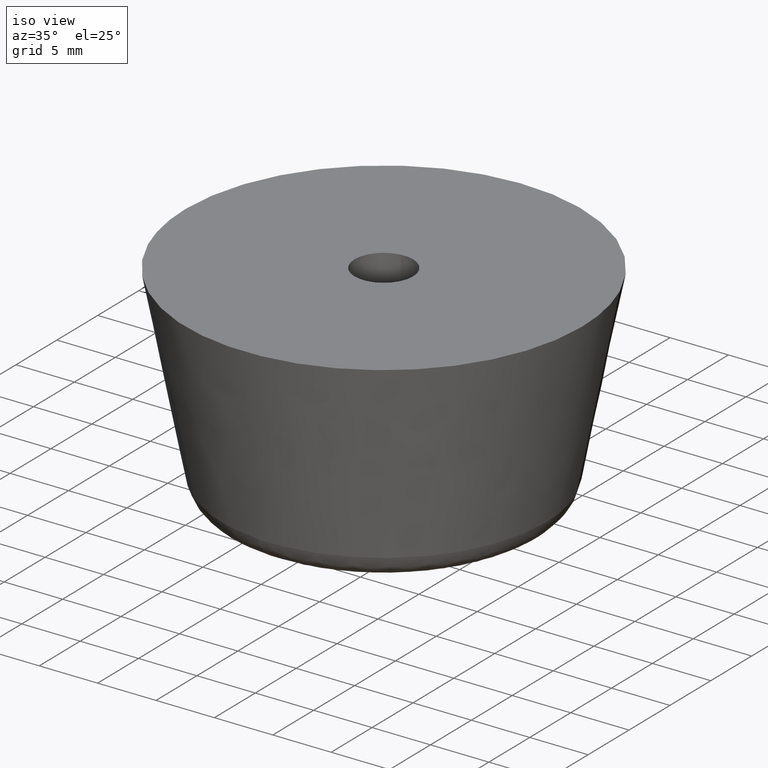
[diagram: clean part render]
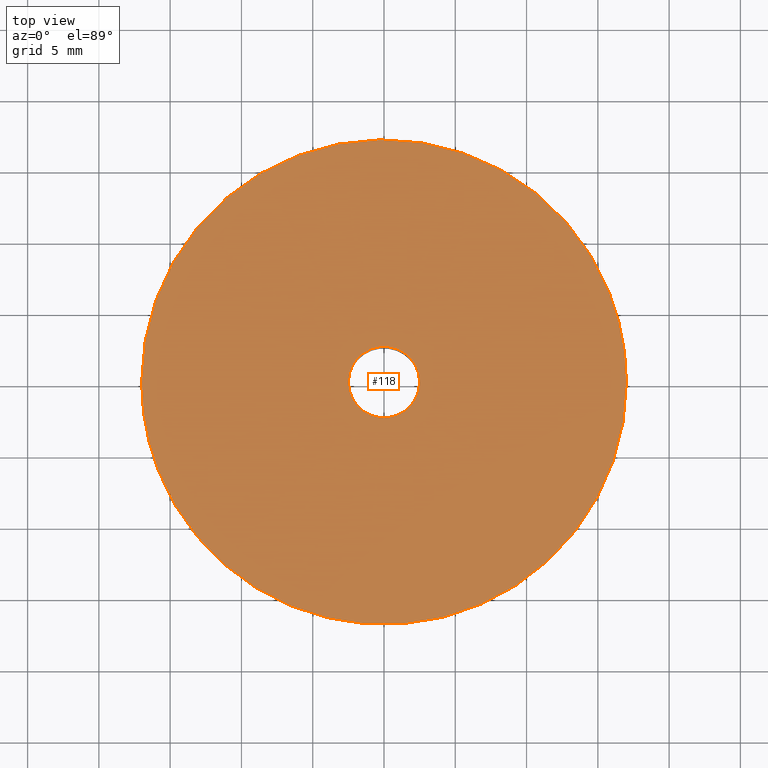
[diagram: tour spotlight — one face highlighted and labeled with its STEP entity id]
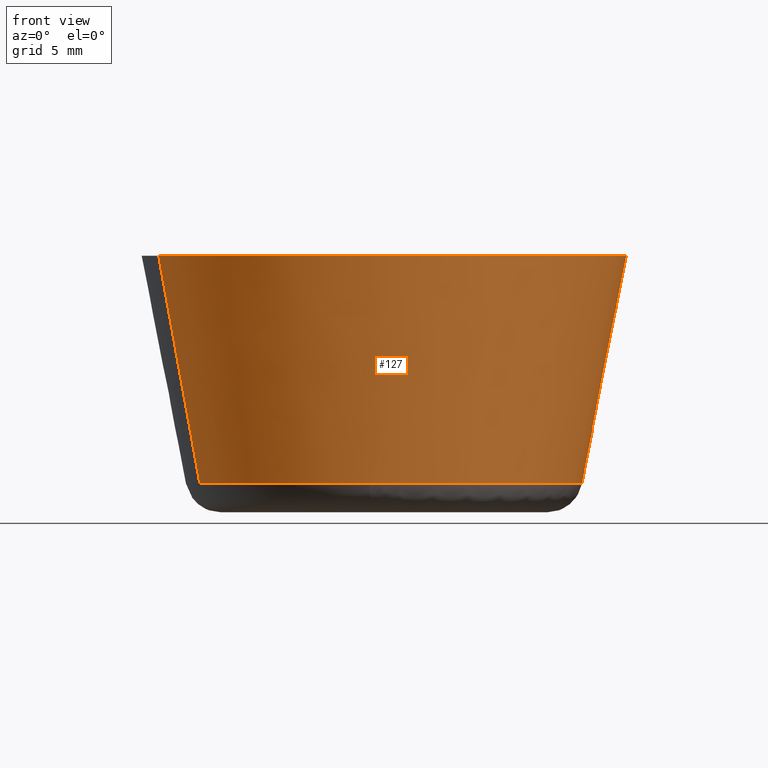
[diagram: tour spotlight — one face highlighted and labeled with its STEP entity id]
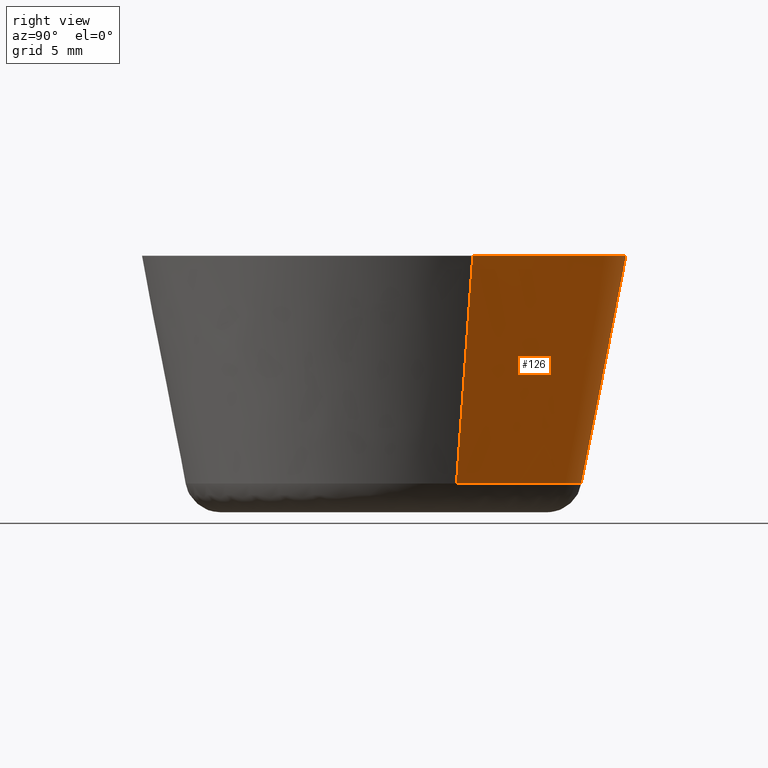
[diagram: tour spotlight — one face highlighted and labeled with its STEP entity id]
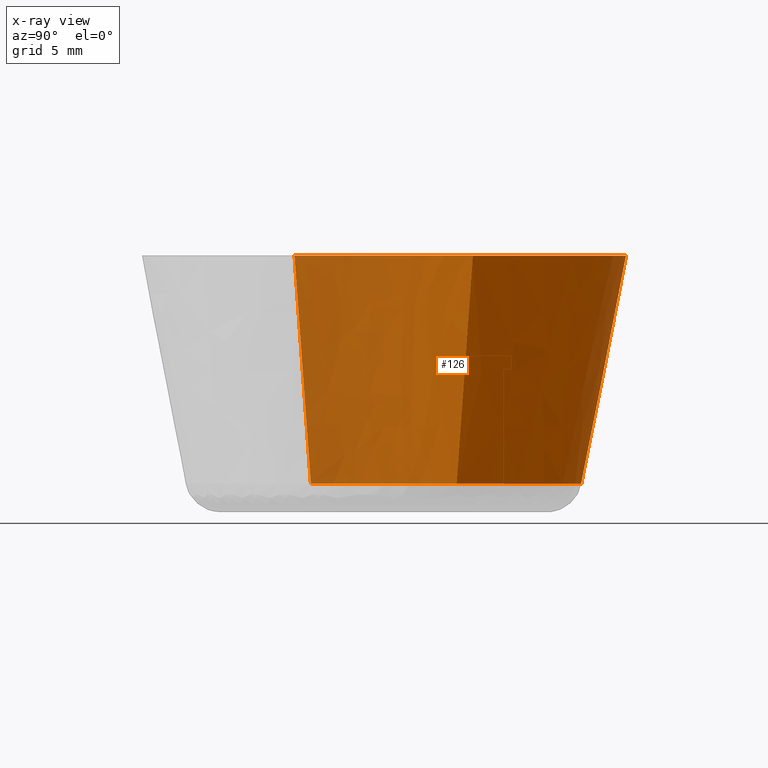
[diagram: x-ray of the same camera — body ghosted, this tour face saturated]
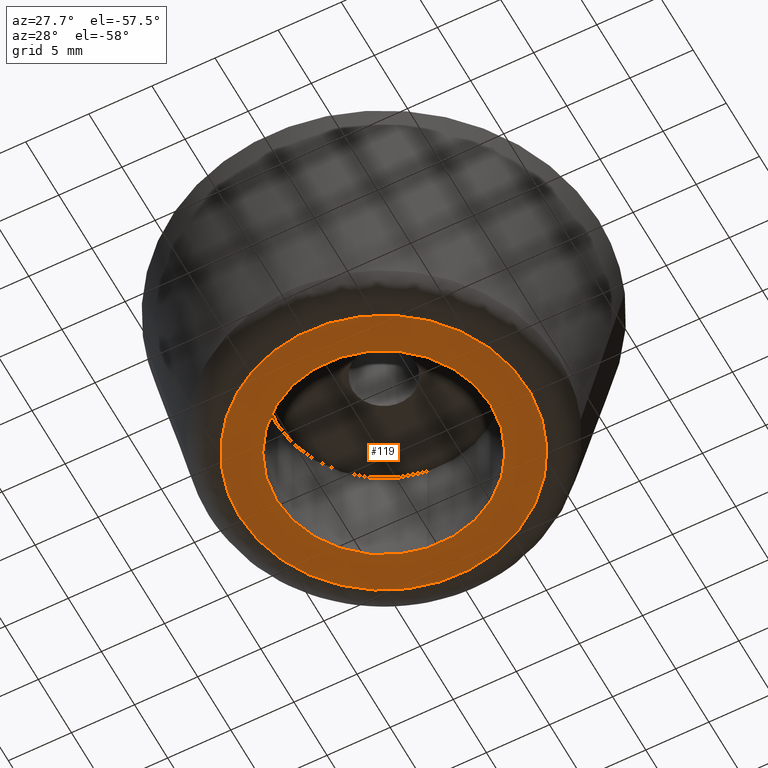
[diagram: tour spotlight — one face highlighted and labeled with its STEP entity id]
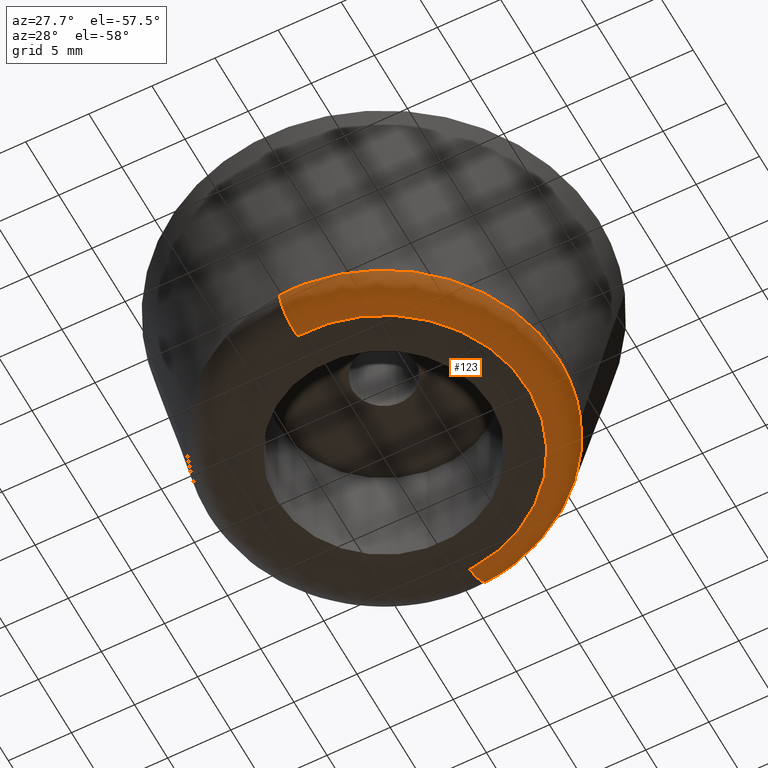
[diagram: tour spotlight — one face highlighted and labeled with its STEP entity id]
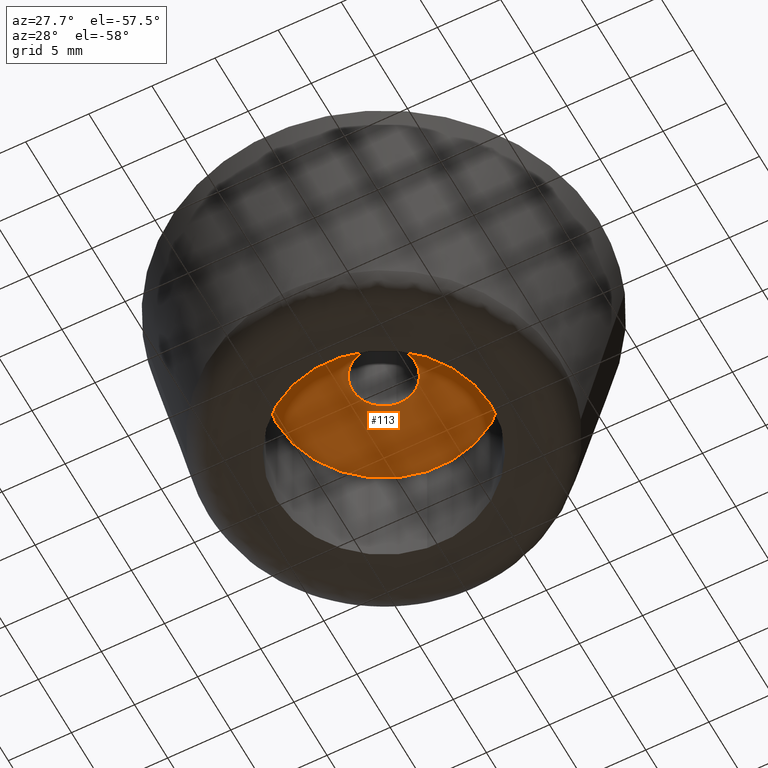
[diagram: tour spotlight — one face highlighted and labeled with its STEP entity id]
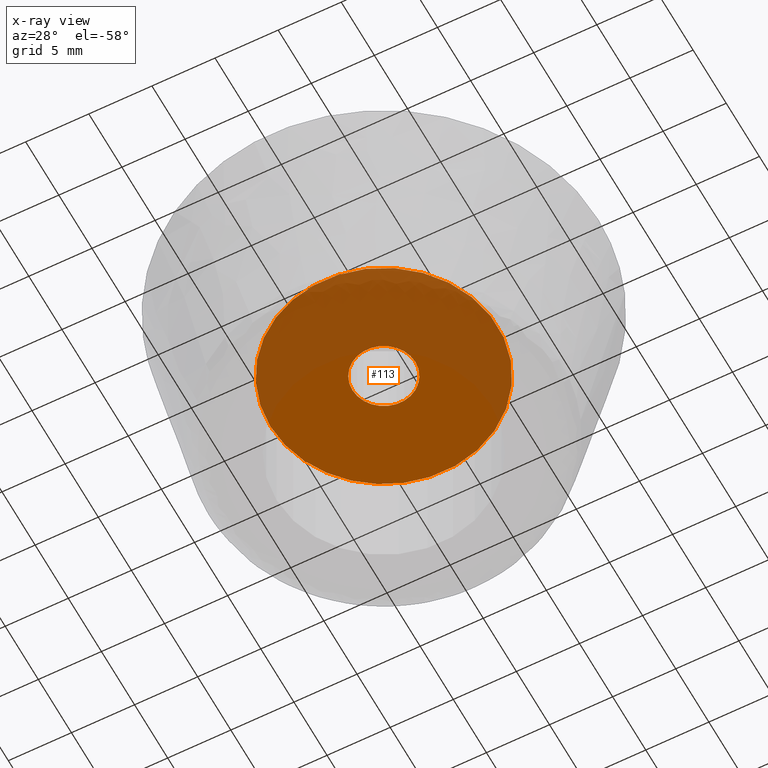
[diagram: x-ray of the same camera — body ghosted, this tour face saturated]
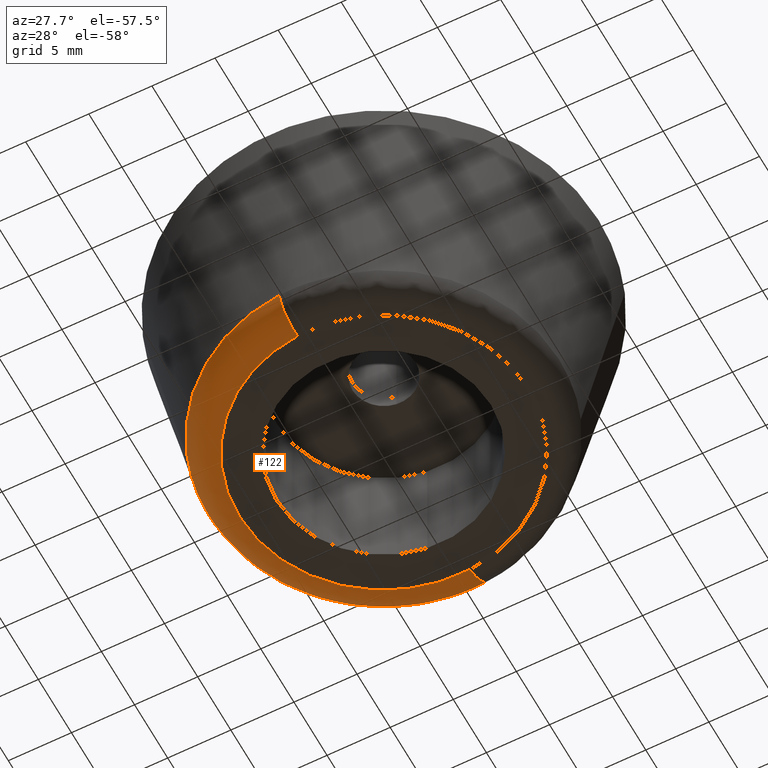
[diagram: tour spotlight — one face highlighted and labeled with its STEP entity id]
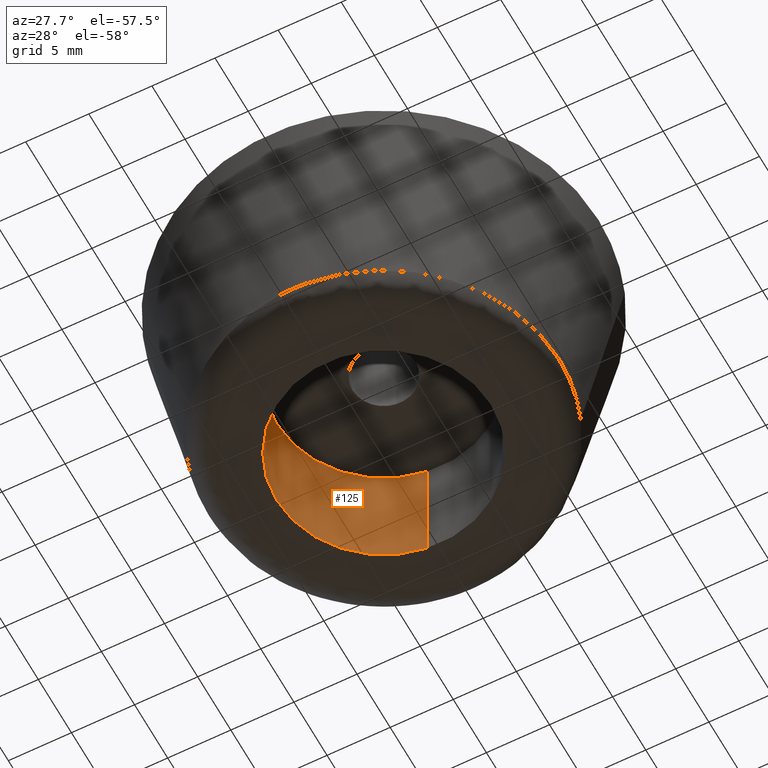
[diagram: tour spotlight — one face highlighted and labeled with its STEP entity id]
A machine part: a face-by-face anatomy tour. The part has 20 B-rep faces; the first image is the clean iso view, then the 8 largest visible faces are spotlighted one at a time (largest first), each with its STEP entity span.

Face 1 — top view, entity #118. In plain terms, the highlighted planar face has unit normal (0, 0, -1).
Definition (entity closure, byte-faithful):
#118=ADVANCED_FACE('',(#195,#196),#194,.F.);
#194=PLANE('',#373);
#195=FACE_OUTER_BOUND('',#374,.T.);
#196=FACE_BOUND('',#375,.T.);
#370=CARTESIAN_POINT('',(2.04000000000E+001,-2.14262968145E+001,1.80000000000E+001));
#371=DIRECTION('',(0.00000000000E+000,0.00000000000E+000,-1.00000000000E+000));
#372=DIRECTION('',(-1.00000000000E+000,0.00000000000E+000,0.00000000000E+000));
#373=AXIS2_PLACEMENT_3D('',#370,#371,#372);
#374=EDGE_LOOP('',(#530,#531,#532,#533,#534));
#375=EDGE_LOOP('',(#535,#536,#537));
#530=ORIENTED_EDGE('',*,*,#634,.F.);
#531=ORIENTED_EDGE('',*,*,#635,.F.);
#532=ORIENTED_EDGE('',*,*,#636,.F.);
#533=ORIENTED_EDGE('',*,*,#637,.F.);
#534=ORIENTED_EDGE('',*,*,#638,.F.);
#535=ORIENTED_EDGE('',*,*,#639,.T.);
#536=ORIENTED_EDGE('',*,*,#640,.T.);
#537=ORIENTED_EDGE('',*,*,#641,.T.);
#634=EDGE_CURVE('',#786,#787,#788,.T.);
#635=EDGE_CURVE('',#794,#786,#795,.T.);
#636=EDGE_CURVE('',#801,#794,#802,.T.);
#637=EDGE_CURVE('',#808,#801,#809,.T.);
#638=EDGE_CURVE('',#787,#808,#815,.T.);
#639=EDGE_CURVE('',#821,#822,#823,.T.);
#640=EDGE_CURVE('',#822,#829,#830,.T.);
#641=EDGE_CURVE('',#829,#821,#836,.T.);
#786=VERTEX_POINT('',#1152);
#787=VERTEX_POINT('',#1153);
#788=CIRCLE('',#1157,1.69999989380E+001);
#794=VERTEX_POINT('',#1158);
#795=CIRCLE('',#1162,1.69999981746E+001);
#801=VERTEX_POINT('',#1163);
#802=CIRCLE('',#1167,1.69999991601E+001);
#808=VERTEX_POINT('',#1168);
#809=CIRCLE('',#1172,1.70000000000E+001);
#815=CIRCLE('',#1176,1.70000000000E+001);
#821=VERTEX_POINT('',#1177);
#822=VERTEX_POINT('',#1178);
#823=CIRCLE('',#1182,2.50000000000E+000);
#829=VERTEX_POINT('',#1183);
#830=CIRCLE('',#1187,2.50000000000E+000);
#836=CIRCLE('',#1191,2.50000000000E+000);
#1152=CARTESIAN_POINT('',(-1.58076963632E+001,-6.25433447857E+000,1.79999945669E+001));
#1153=CARTESIAN_POINT('',(-1.70000000000E+001,0.00000000000E+000,1.80000000000E+001));
#1154=CARTESIAN_POINT('',(-1.06202827155E-006,2.66907732627E-006,1.79999972834E+001));
#1155=DIRECTION('',(-1.59798219147E-007,8.38236464261E-007,-1.00000000000E+000));
#1156=DIRECTION('',(9.29864487571E-001,3.67902208139E-001,1.59798356982E-007));
#1157=AXIS2_PLACEMENT_3D('',#1154,#1155,#1156);
#1158=CARTESIAN_POINT('',(1.33379480584E+000,-1.69475944775E+001,1.79999950323E+001));
#1159=CARTESIAN_POINT('',(-4.71206293540E-007,-8.99228535189E-007,1.79999947996E+001));
#1160=DIRECTION('',(1.95462561115E-008,-1.21934107991E-008,-1.00000000000E+000));
#1161=DIRECTION('',(-7.84585541336E-002,9.96917376357E-001,-1.36893940960E-008));
#1162=AXIS2_PLACEMENT_3D('',#1159,#1160,#1161);
#1163=CARTESIAN_POINT('',(1.70000000000E+001,0.00000000000E+000,1.80000000000E+001));
#1164=CARTESIAN_POINT('',(8.39930908825E-007,1.92506764307E-007,1.79999975162E+001));
#1165=DIRECTION('',(1.46108822527E-007,1.58059541506E-007,-1.00000000000E+000));
#1166=DIRECTION('',(-1.00000000000E+000,1.13239278717E-008,-1.46108820737E-007));
#1167=AXIS2_PLACEMENT_3D('',#1164,#1165,#1166);
#1168=CARTESIAN_POINT('',(1.58076945217E+001,6.25434200453E+000,1.80000000000E+001));
#1169=CARTESIAN_POINT('',(0.00000000000E+000,0.00000000000E+000,1.80000000000E+001));
#1170=DIRECTION('',(0.00000000000E+000,4.43320223628E-016,-1.00000000000E+000));
#1171=DIRECTION('',(1.00000000000E+000,-0.00000000000E+000,-0.00000000000E+000));
#1172=AXIS2_PLACEMENT_3D('',#1169,#1170,#1171);
#1173=CARTESIAN_POINT('',(0.00000000000E+000,0.00000000000E+000,1.80000000000E+001));
#1174=DIRECTION('',(0.00000000000E+000,4.43320223628E-016,-1.00000000000E+000));
#1175=DIRECTION('',(1.00000000000E+000,-0.00000000000E+000,-0.00000000000E+000));
#1176=AXIS2_PLACEMENT_3D('',#1173,#1174,#1175);
#1177=CARTESIAN_POINT('',(-2.50000000000E+000,0.00000000000E+000,1.80000000000E+001));
#1178=CARTESIAN_POINT('',(-2.95514653005E-001,2.48247277726E+000,1.80000000000E+001));
#1179=CARTESIAN_POINT('',(3.10862446895E-015,1.77635683940E-015,1.80000000000E+001));
#1180=DIRECTION('',(3.32039198475E-015,6.11903677810E-015,-1.00000000000E+000));
#1181=DIRECTION('',(-1.00000000000E+000,-3.46944695195E-016,-3.32039198475E-015));
#1182=AXIS2_PLACEMENT_3D('',#1179,#1180,#1181);
#1183=CARTESIAN_POINT('',(2.95084678798E-001,-2.48252392382E+000,1.80000000000E+001));
#1184=CARTESIAN_POINT('',(3.10862446895E-015,1.77635683940E-015,1.80000000000E+001));
#1185=DIRECTION('',(3.32039198475E-015,6.11903677810E-015,-1.00000000000E+000));
#1186=DIRECTION('',(-1.00000000000E+000,-3.46944695195E-016,-3.32039198475E-015));
#1187=AXIS2_PLACEMENT_3D('',#1184,#1185,#1186);
#1188=CARTESIAN_POINT('',(3.10862446895E-015,1.77635683940E-015,1.80000000000E+001));
#1189=DIRECTION('',(3.32039198475E-015,6.11903677810E-015,-1.00000000000E+000));
#1190=DIRECTION('',(-1.00000000000E+000,-3.46944695195E-016,-3.32039198475E-015));
#1191=AXIS2_PLACEMENT_3D('',#1188,#1189,#1190);

Face 2 — front view, entity #127. In plain terms, the highlighted face is a freeform B-spline surface patch.
Definition (entity closure, byte-faithful):
#127=ADVANCED_FACE('',(#289),#288,.T.);
#288=( BOUNDED_SURFACE() B_SPLINE_SURFACE( 2,1,((#467,#468),(#469,#470),(#471,#472),(#473,#474),(#475,#476)), .UNSPECIFIED.,.F.,.F.,.F.) B_SPLINE_SURFACE_WITH_KNOTS((3,2,3),(2,2),(0.00000000000E+000,5.00000000000E-001,1.00000000000E+000),(0.00000000000E+000,1.00000000000E+000), .UNSPECIFIED. ) GEOMETRIC_REPRESENTATION_ITEM() RATIONAL_B_SPLINE_SURFACE(((1.00000000000E+000,1.00000000000E+000),(7.07106781187E-001,7.07106781187E-001),(1.00000000000E+000,1.00000000000E+000),(7.07106781187E-001,7.07106781187E-001),(1.00000000000E+000,1.00000000000E+000))) REPRESENTATION_ITEM('') SURFACE() );
#289=FACE_OUTER_BOUND('',#477,.T.);
#467=CARTESIAN_POINT('',(-1.29189094899E+001,-5.11138768266E+000,2.02282069233E+000));
#468=CARTESIAN_POINT('',(-1.58078560263E+001,-6.25440410777E+000,1.80008898443E+001));
#469=CARTESIAN_POINT('',(-7.80752180728E+000,-1.80302971726E+001,2.02282069233E+000));
#470=CARTESIAN_POINT('',(-9.55345191848E+000,-2.20622601340E+001,1.80008898443E+001));
#471=CARTESIAN_POINT('',(5.11138768266E+000,-1.29189094899E+001,2.02282069233E+000));
#472=CARTESIAN_POINT('',(6.25440410777E+000,-1.58078560263E+001,1.80008898443E+001));
#473=CARTESIAN_POINT('',(1.80302971726E+001,-7.80752180728E+000,2.02282069233E+000));
#474=CARTESIAN_POINT('',(2.20622601340E+001,-9.55345191848E+000,1.80008898443E+001));
#475=CARTESIAN_POINT('',(1.29189094899E+001,5.11138768266E+000,2.02282069233E+000));
#476=CARTESIAN_POINT('',(1.58078560263E+001,6.25440410777E+000,1.80008898443E+001));
#477=EDGE_LOOP('',(#589,#590,#591,#592,#593,#594,#595,#596,#597));
#589=ORIENTED_EDGE('',*,*,#661,.F.);
#590=ORIENTED_EDGE('',*,*,#669,.F.);
#591=ORIENTED_EDGE('',*,*,#668,.F.);
#592=ORIENTED_EDGE('',*,*,#667,.F.);
#593=ORIENTED_EDGE('',*,*,#672,.T.);
#594=ORIENTED_EDGE('',*,*,#637,.T.);
#595=ORIENTED_EDGE('',*,*,#636,.T.);
#596=ORIENTED_EDGE('',*,*,#635,.T.);
#597=ORIENTED_EDGE('',*,*,#673,.F.);
#635=EDGE_CURVE('',#794,#786,#795,.T.);
#636=EDGE_CURVE('',#801,#794,#802,.T.);
#637=EDGE_CURVE('',#808,#801,#809,.T.);
#661=EDGE_CURVE('',#968,#975,#976,.T.);
#667=EDGE_CURVE('',#1009,#1016,#1017,.T.);
#668=EDGE_CURVE('',#1016,#1023,#1024,.T.);
#669=EDGE_CURVE('',#1023,#968,#1030,.T.);
#672=EDGE_CURVE('',#1009,#808,#1048,.T.);
#673=EDGE_CURVE('',#975,#786,#1054,.T.);
#786=VERTEX_POINT('',#1152);
#794=VERTEX_POINT('',#1158);
#795=CIRCLE('',#1162,1.69999981746E+001);
#801=VERTEX_POINT('',#1163);
#802=CIRCLE('',#1167,1.69999991601E+001);
#808=VERTEX_POINT('',#1168);
#809=CIRCLE('',#1172,1.70000000000E+001);
#968=VERTEX_POINT('',#1282);
#975=VERTEX_POINT('',#1286);
#976=CIRCLE('',#1290,1.38933259010E+001);
#1009=VERTEX_POINT('',#1311);
#1016=VERTEX_POINT('',#1316);
#1017=CIRCLE('',#1320,1.38933273125E+001);
#1023=VERTEX_POINT('',#1321);
#1024=CIRCLE('',#1325,1.38933267741E+001);
#1030=CIRCLE('',#1329,1.38933259010E+001);
#1048=(BOUNDED_CURVE() B_SPLINE_CURVE(1,(#1334,#1335),.UNSPECIFIED.,.F.,.F.) B_SPLINE_CURVE_WITH_KNOTS((2,2),(3.30806778497E-007,9.99944308418E-001),.UNSPECIFIED.) CURVE() GEOMETRIC_REPRESENTATION_ITEM() RATIONAL_B_SPLINE_CURVE((1.00000000000E+000,1.00000000000E+000)) REPRESENTATION_ITEM('') );
#1054=(BOUNDED_CURVE() B_SPLINE_CURVE(1,(#1336,#1337),.UNSPECIFIED.,.F.,.F.) B_SPLINE_CURVE_WITH_KNOTS((2,2),(0.00000000000E+000,1.00000000000E+000),.UNSPECIFIED.) CURVE() GEOMETRIC_REPRESENTATION_ITEM() RATIONAL_B_SPLINE_CURVE((7.50000000000E-001,7.50000000000E-001)) REPRESENTATION_ITEM('') );
#1152=CARTESIAN_POINT('',(-1.58076963632E+001,-6.25433447857E+000,1.79999945669E+001));
#1158=CARTESIAN_POINT('',(1.33379480584E+000,-1.69475944775E+001,1.79999950323E+001));
#1159=CARTESIAN_POINT('',(-4.71206293540E-007,-8.99228535189E-007,1.79999947996E+001));
#1160=DIRECTION('',(1.95462561115E-008,-1.21934107991E-008,-1.00000000000E+000));
#1161=DIRECTION('',(-7.84585541336E-002,9.96917376357E-001,-1.36893940960E-008));
#1162=AXIS2_PLACEMENT_3D('',#1159,#1160,#1161);
#1163=CARTESIAN_POINT('',(1.70000000000E+001,0.00000000000E+000,1.80000000000E+001));
#1164=CARTESIAN_POINT('',(8.39930908825E-007,1.92506764307E-007,1.79999975162E+001));
#1165=DIRECTION('',(1.46108822527E-007,1.58059541506E-007,-1.00000000000E+000));
#1166=DIRECTION('',(-1.00000000000E+000,1.13239278717E-008,-1.46108820737E-007));
#1167=AXIS2_PLACEMENT_3D('',#1164,#1165,#1166);
#1168=CARTESIAN_POINT('',(1.58076945217E+001,6.25434200453E+000,1.80000000000E+001));
#1169=CARTESIAN_POINT('',(0.00000000000E+000,0.00000000000E+000,1.80000000000E+001));
#1170=DIRECTION('',(0.00000000000E+000,4.43320223628E-016,-1.00000000000E+000));
#1171=DIRECTION('',(1.00000000000E+000,-0.00000000000E+000,-0.00000000000E+000));
#1172=AXIS2_PLACEMENT_3D('',#1169,#1170,#1171);
#1282=CARTESIAN_POINT('',(-1.01017146346E+000,-1.38565537819E+001,2.02282462871E+000));
#1286=CARTESIAN_POINT('',(-1.29189116751E+001,-5.11138215979E+000,2.02282069233E+000));
#1287=CARTESIAN_POINT('',(2.86107632697E-007,-9.05116301908E-007,2.02282289815E+000));
#1288=DIRECTION('',(2.26695928032E-007,-1.41418122831E-007,-1.00000000000E+000));
#1289=DIRECTION('',(-7.84589450348E-002,9.96917345593E-001,-1.58768502989E-007));
#1290=AXIS2_PLACEMENT_3D('',#1287,#1288,#1289);
#1311=CARTESIAN_POINT('',(1.29189087340E+001,5.11139241056E+000,2.02282599644E+000));
#1316=CARTESIAN_POINT('',(1.38933270000E+001,0.00000000000E+000,2.02282600000E+000));
#1317=CARTESIAN_POINT('',(-3.12496521993E-007,-4.76153232398E-008,2.02282594917E+000));
#1318=DIRECTION('',(3.65857762332E-009,1.34148134800E-016,-1.00000000000E+000));
#1319=DIRECTION('',(-7.27090224111E-002,-9.97353196245E-001,-2.66011736199E-010));
#1320=AXIS2_PLACEMENT_3D('',#1317,#1318,#1319);
#1321=CARTESIAN_POINT('',(1.09005597932E+000,-1.38504984838E+001,2.02282510397E+000));
#1322=CARTESIAN_POINT('',(2.25943829868E-007,-3.40934551701E-008,2.02282502768E+000));
#1323=DIRECTION('',(6.99844360545E-008,2.53087337270E-023,-1.00000000000E+000));
#1324=DIRECTION('',(-1.00000000000E+000,-2.45394466888E-009,-6.99844360545E-008));
#1325=AXIS2_PLACEMENT_3D('',#1322,#1323,#1324);
#1326=CARTESIAN_POINT('',(2.86107632697E-007,-9.05116301908E-007,2.02282289815E+000));
#1327=DIRECTION('',(2.26695928032E-007,-1.41418122831E-007,-1.00000000000E+000));
#1328=DIRECTION('',(-7.84589450348E-002,9.96917345593E-001,-1.58768502989E-007));
#1329=AXIS2_PLACEMENT_3D('',#1326,#1327,#1328);
#1334=CARTESIAN_POINT('',(1.29189094899E+001,5.11138768266E+000,2.02282069233E+000));
#1335=CARTESIAN_POINT('',(1.58076951362E+001,6.25434045136E+000,1.80000000001E+001));
#1336=CARTESIAN_POINT('',(-1.29189094899E+001,-5.11138768266E+000,2.02282069233E+000));
#1337=CARTESIAN_POINT('',(-1.58078560263E+001,-6.25440410777E+000,1.80008898443E+001));

Face 3 — right view, entity #126. An x-ray twin of the same camera follows (body ghosted, this face saturated) — the face is partly hidden behind the body. In plain terms, the highlighted face is a freeform B-spline surface patch.
Definition (entity closure, byte-faithful):
#126=ADVANCED_FACE('',(#279),#278,.T.);
#278=( BOUNDED_SURFACE() B_SPLINE_SURFACE( 2,1,((#456,#457),(#458,#459),(#460,#461),(#462,#463),(#464,#465)), .UNSPECIFIED.,.F.,.F.,.F.) B_SPLINE_SURFACE_WITH_KNOTS((3,2,3),(2,2),(0.00000000000E+000,5.00000000000E-001,1.00000000000E+000),(0.00000000000E+000,1.00000000000E+000), .UNSPECIFIED. ) GEOMETRIC_REPRESENTATION_ITEM() RATIONAL_B_SPLINE_SURFACE(((1.00000000000E+000,1.00000000000E+000),(7.07106781187E-001,7.07106781187E-001),(1.00000000000E+000,1.00000000000E+000),(7.07106781187E-001,7.07106781187E-001),(1.00000000000E+000,1.00000000000E+000))) REPRESENTATION_ITEM('') SURFACE() );
#279=FACE_OUTER_BOUND('',#466,.T.);
#456=CARTESIAN_POINT('',(1.29189094899E+001,5.11138768266E+000,2.02282069233E+000));
#457=CARTESIAN_POINT('',(1.58078560263E+001,6.25440410777E+000,1.80008898443E+001));
#458=CARTESIAN_POINT('',(7.80752180728E+000,1.80302971726E+001,2.02282069233E+000));
#459=CARTESIAN_POINT('',(9.55345191848E+000,2.20622601340E+001,1.80008898443E+001));
#460=CARTESIAN_POINT('',(-5.11138768266E+000,1.29189094899E+001,2.02282069233E+000));
#461=CARTESIAN_POINT('',(-6.25440410777E+000,1.58078560263E+001,1.80008898443E+001));
#462=CARTESIAN_POINT('',(-1.80302971726E+001,7.80752180728E+000,2.02282069233E+000));
#463=CARTESIAN_POINT('',(-2.20622601340E+001,9.55345191848E+000,1.80008898443E+001));
#464=CARTESIAN_POINT('',(-1.29189094899E+001,-5.11138768266E+000,2.02282069233E+000));
#465=CARTESIAN_POINT('',(-1.58078560263E+001,-6.25440410777E+000,1.80008898443E+001));
#466=EDGE_LOOP('',(#581,#582,#583,#584,#585,#586,#587,#588));
#581=ORIENTED_EDGE('',*,*,#634,.T.);
#582=ORIENTED_EDGE('',*,*,#638,.T.);
#583=ORIENTED_EDGE('',*,*,#672,.F.);
#584=ORIENTED_EDGE('',*,*,#666,.F.);
#585=ORIENTED_EDGE('',*,*,#664,.F.);
#586=ORIENTED_EDGE('',*,*,#663,.F.);
#587=ORIENTED_EDGE('',*,*,#662,.F.);
#588=ORIENTED_EDGE('',*,*,#673,.T.);
#634=EDGE_CURVE('',#786,#787,#788,.T.);
#638=EDGE_CURVE('',#787,#808,#815,.T.);
#662=EDGE_CURVE('',#975,#982,#983,.T.);
#663=EDGE_CURVE('',#982,#989,#990,.T.);
#664=EDGE_CURVE('',#989,#996,#997,.T.);
#666=EDGE_CURVE('',#996,#1009,#1010,.T.);
#672=EDGE_CURVE('',#1009,#808,#1048,.T.);
#673=EDGE_CURVE('',#975,#786,#1054,.T.);
#786=VERTEX_POINT('',#1152);
#787=VERTEX_POINT('',#1153);
#788=CIRCLE('',#1157,1.69999989380E+001);
#808=VERTEX_POINT('',#1168);
#815=CIRCLE('',#1176,1.70000000000E+001);
#975=VERTEX_POINT('',#1286);
#982=VERTEX_POINT('',#1291);
#983=CIRCLE('',#1295,1.38933259625E+001);
#989=VERTEX_POINT('',#1296);
#990=CIRCLE('',#1300,1.38933407391E+001);
#996=VERTEX_POINT('',#1301);
#997=CIRCLE('',#1305,1.38933278305E+001);
#1009=VERTEX_POINT('',#1311);
#1010=CIRCLE('',#1315,1.38933273125E+001);
#1048=(BOUNDED_CURVE() B_SPLINE_CURVE(1,(#1334,#1335),.UNSPECIFIED.,.F.,.F.) B_SPLINE_CURVE_WITH_KNOTS((2,2),(3.30806778497E-007,9.99944308418E-001),.UNSPECIFIED.) CURVE() GEOMETRIC_REPRESENTATION_ITEM() RATIONAL_B_SPLINE_CURVE((1.00000000000E+000,1.00000000000E+000)) REPRESENTATION_ITEM('') );
#1054=(BOUNDED_CURVE() B_SPLINE_CURVE(1,(#1336,#1337),.UNSPECIFIED.,.F.,.F.) B_SPLINE_CURVE_WITH_KNOTS((2,2),(0.00000000000E+000,1.00000000000E+000),.UNSPECIFIED.) CURVE() GEOMETRIC_REPRESENTATION_ITEM() RATIONAL_B_SPLINE_CURVE((7.50000000000E-001,7.50000000000E-001)) REPRESENTATION_ITEM('') );
#1152=CARTESIAN_POINT('',(-1.58076963632E+001,-6.25433447857E+000,1.79999945669E+001));
#1153=CARTESIAN_POINT('',(-1.70000000000E+001,0.00000000000E+000,1.80000000000E+001));
#1154=CARTESIAN_POINT('',(-1.06202827155E-006,2.66907732627E-006,1.79999972834E+001));
#1155=DIRECTION('',(-1.59798219147E-007,8.38236464261E-007,-1.00000000000E+000));
#1156=DIRECTION('',(9.29864487571E-001,3.67902208139E-001,1.59798356982E-007));
#1157=AXIS2_PLACEMENT_3D('',#1154,#1155,#1156);
#1168=CARTESIAN_POINT('',(1.58076945217E+001,6.25434200453E+000,1.80000000000E+001));
#1173=CARTESIAN_POINT('',(0.00000000000E+000,0.00000000000E+000,1.80000000000E+001));
#1174=DIRECTION('',(0.00000000000E+000,4.43320223628E-016,-1.00000000000E+000));
#1175=DIRECTION('',(1.00000000000E+000,-0.00000000000E+000,-0.00000000000E+000));
#1176=AXIS2_PLACEMENT_3D('',#1173,#1174,#1175);
#1286=CARTESIAN_POINT('',(-1.29189116751E+001,-5.11138215979E+000,2.02282069233E+000));
#1291=CARTESIAN_POINT('',(-1.38933270000E+001,0.00000000000E+000,2.02282600000E+000));
#1292=CARTESIAN_POINT('',(-1.03750130087E-006,2.60744352643E-006,2.02282334617E+000));
#1293=DIRECTION('',(-1.91015272668E-007,1.00198863825E-006,-9.99999999999E-001));
#1294=DIRECTION('',(9.29864502743E-001,3.67902169792E-001,1.91015472582E-007));
#1295=AXIS2_PLACEMENT_3D('',#1292,#1293,#1294);
#1296=CARTESIAN_POINT('',(-1.36472382203E+001,2.60334992263E+000,2.02282595287E+000));
#1297=CARTESIAN_POINT('',(1.37391117701E-005,-5.70933811339E-009,2.02282333940E+000));
#1298=DIRECTION('',(-1.91501654983E-007,3.39034925090E-017,-1.00000000000E+000));
#1299=DIRECTION('',(1.00000000000E+000,-4.10940624044E-010,-1.91501654983E-007));
#1300=AXIS2_PLACEMENT_3D('',#1297,#1298,#1299);
#1301=CARTESIAN_POINT('',(1.01016993443E+000,1.38565543540E+001,2.02282595287E+000));
#1302=CARTESIAN_POINT('',(4.79665229314E-007,-6.24770445157E-007,2.02282584734E+000));
#1303=DIRECTION('',(-6.69301139328E-009,5.45094152726E-009,-1.00000000000E+000));
#1304=DIRECTION('',(9.82287243664E-001,-1.87381351621E-001,-7.59586450431E-009));
#1305=AXIS2_PLACEMENT_3D('',#1302,#1303,#1304);
#1311=CARTESIAN_POINT('',(1.29189087340E+001,5.11139241056E+000,2.02282599644E+000));
#1312=CARTESIAN_POINT('',(-3.12496521993E-007,-4.76153232398E-008,2.02282594917E+000));
#1313=DIRECTION('',(3.65857762332E-009,1.34148134800E-016,-1.00000000000E+000));
#1314=DIRECTION('',(-7.27090224111E-002,-9.97353196245E-001,-2.66011736199E-010));
#1315=AXIS2_PLACEMENT_3D('',#1312,#1313,#1314);
#1334=CARTESIAN_POINT('',(1.29189094899E+001,5.11138768266E+000,2.02282069233E+000));
#1335=CARTESIAN_POINT('',(1.58076951362E+001,6.25434045136E+000,1.80000000001E+001));
#1336=CARTESIAN_POINT('',(-1.29189094899E+001,-5.11138768266E+000,2.02282069233E+000));
#1337=CARTESIAN_POINT('',(-1.58078560263E+001,-6.25440410777E+000,1.80008898443E+001));

Face 4 — auxiliary view, entity #119. In plain terms, the highlighted planar face has unit normal (0, 0, 1).
Definition (entity closure, byte-faithful):
#119=ADVANCED_FACE('',(#206,#207),#205,.F.);
#205=PLANE('',#379);
#206=FACE_OUTER_BOUND('',#380,.T.);
#207=FACE_BOUND('',#381,.T.);
#376=CARTESIAN_POINT('',(-1.48710757018E+001,-2.37761157020E+001,0.00000000000E+000));
#377=DIRECTION('',(0.00000000000E+000,0.00000000000E+000,1.00000000000E+000));
#378=DIRECTION('',(1.00000000000E+000,0.00000000000E+000,0.00000000000E+000));
#379=AXIS2_PLACEMENT_3D('',#376,#377,#378);
#380=EDGE_LOOP('',(#538,#539,#540));
#381=EDGE_LOOP('',(#541,#542,#543));
#538=ORIENTED_EDGE('',*,*,#642,.T.);
#539=ORIENTED_EDGE('',*,*,#643,.T.);
#540=ORIENTED_EDGE('',*,*,#644,.T.);
#541=ORIENTED_EDGE('',*,*,#645,.F.);
#542=ORIENTED_EDGE('',*,*,#646,.F.);
#543=ORIENTED_EDGE('',*,*,#647,.F.);
#642=EDGE_CURVE('',#842,#843,#844,.T.);
#643=EDGE_CURVE('',#843,#850,#851,.T.);
#644=EDGE_CURVE('',#850,#842,#857,.T.);
#645=EDGE_CURVE('',#863,#864,#865,.T.);
#646=EDGE_CURVE('',#871,#863,#872,.T.);
#647=EDGE_CURVE('',#864,#871,#878,.T.);
#842=VERTEX_POINT('',#1192);
#843=VERTEX_POINT('',#1193);
#844=CIRCLE('',#1197,1.14392890007E+001);
#850=VERTEX_POINT('',#1198);
#851=CIRCLE('',#1202,1.14392890007E+001);
#857=CIRCLE('',#1206,1.14392890007E+001);
#863=VERTEX_POINT('',#1207);
#864=VERTEX_POINT('',#1208);
#865=CIRCLE('',#1212,8.50000000000E+000);
#871=VERTEX_POINT('',#1213);
#872=CIRCLE('',#1217,8.50000000000E+000);
#878=CIRCLE('',#1221,8.50000000000E+000);
#1192=CARTESIAN_POINT('',(-1.14392890014E+001,-1.44328993201E-015,7.00978441769E-016));
#1193=CARTESIAN_POINT('',(8.32331233074E-001,1.14089682950E+001,3.24987362716E-016));
#1194=CARTESIAN_POINT('',(-6.88919143954E-010,-1.36064493006E-010,3.50489220884E-016));
#1195=DIRECTION('',(-3.06390738850E-017,-3.01829552308E-032,-1.00000000000E+000));
#1196=DIRECTION('',(-1.00000000000E+000,1.18947351968E-011,3.06390738850E-017));
#1197=AXIS2_PLACEMENT_3D('',#1194,#1195,#1196);
#1198=CARTESIAN_POINT('',(-8.31740553682E-001,-1.14090113725E+001,3.75972981141E-016));
#1199=CARTESIAN_POINT('',(-6.88919143954E-010,-1.36064493006E-010,3.50489220884E-016));
#1200=DIRECTION('',(-3.06390738850E-017,-3.01829552308E-032,-1.00000000000E+000));
#1201=DIRECTION('',(-1.00000000000E+000,1.18947351968E-011,3.06390738850E-017));
#1202=AXIS2_PLACEMENT_3D('',#1199,#1200,#1201);
#1203=CARTESIAN_POINT('',(-6.88919143954E-010,-1.36064493006E-010,3.50489220884E-016));
#1204=DIRECTION('',(-3.06390738850E-017,-3.01829552308E-032,-1.00000000000E+000));
#1205=DIRECTION('',(-1.00000000000E+000,1.18947351968E-011,3.06390738850E-017));
#1206=AXIS2_PLACEMENT_3D('',#1203,#1204,#1205);
#1207=CARTESIAN_POINT('',(1.00328790791E+000,-8.44058134099E+000,2.16034430758E-014));
#1208=CARTESIAN_POINT('',(-8.50000000000E+000,2.22044604925E-016,1.96717807180E-013));
#1209=CARTESIAN_POINT('',(1.12443387934E-012,5.14255305006E-013,1.62037363692E-014));
#1210=DIRECTION('',(-2.12369495071E-014,-3.16405710330E-015,-1.00000000000E+000));
#1211=DIRECTION('',(-1.00000000000E+000,-6.01185767835E-014,2.12369495071E-014));
#1212=AXIS2_PLACEMENT_3D('',#1209,#1210,#1211);
#1213=CARTESIAN_POINT('',(-1.00474982022E+000,8.44040744270E+000,1.08356264446E-014));
#1214=CARTESIAN_POINT('',(1.12443387934E-012,5.14255305006E-013,1.62037363692E-014));
#1215=DIRECTION('',(-2.12369495071E-014,-3.16405710330E-015,-1.00000000000E+000));
#1216=DIRECTION('',(-1.00000000000E+000,-6.01185767835E-014,2.12369495071E-014));
#1217=AXIS2_PLACEMENT_3D('',#1214,#1215,#1216);
#1218=CARTESIAN_POINT('',(1.12443387934E-012,5.14255305006E-013,1.62037363692E-014));
#1219=DIRECTION('',(-2.12369495071E-014,-3.16405710330E-015,-1.00000000000E+000));
#1220=DIRECTION('',(-1.00000000000E+000,-6.01185767835E-014,2.12369495071E-014));
#1221=AXIS2_PLACEMENT_3D('',#1218,#1219,#1220);

Face 5 — auxiliary view, entity #123. In plain terms, the highlighted face is a freeform B-spline surface patch.
Definition (entity closure, byte-faithful):
#123=ADVANCED_FACE('',(#249),#248,.T.);
#248=( BOUNDED_SURFACE() B_SPLINE_SURFACE( 2,2,((#420,#421,#422,#423,#424),(#425,#426,#427,#428,#429),(#430,#431,#432,#433,#434),(#435,#436,#437,#438,#439),(#440,#441,#442,#443,#444)), .UNSPECIFIED.,.F.,.F.,.F.) B_SPLINE_SURFACE_WITH_KNOTS((3,2,3),(3,2,3),(0.00000000000E+000,5.00000000000E-001,1.00000000000E+000),(0.00000000000E+000,5.00000000000E-001,1.00000000000E+000), .UNSPECIFIED. ) GEOMETRIC_REPRESENTATION_ITEM() RATIONAL_B_SPLINE_SURFACE(((1.00000000000E+000,7.71644218536E-001,1.00000000000E+000,7.71644218536E-001,1.00000000000E+000),(7.07106781187E-001,5.45634859590E-001,7.07106781187E-001,5.45634859590E-001,7.07106781187E-001),(1.00000000000E+000,7.71644218536E-001,1.00000000000E+000,7.71644218536E-001,1.00000000000E+000),(7.07106781187E-001,5.45634859590E-001,7.07106781187E-001,5.45634859590E-001,7.07106781187E-001),(1.00000000000E+000,7.71644218536E-001,1.00000000000E+000,7.71644218536E-001,1.00000000000E+000))) REPRESENTATION_ITEM('') SURFACE() );
#249=FACE_OUTER_BOUND('',#445,.T.);
#420=CARTESIAN_POINT('',(1.01017151581E+000,1.38565545000E+001,2.02282600000E+000));
#421=CARTESIAN_POINT('',(9.81573047610E-001,1.34642684110E+001,-2.87755159167E-016));
#422=CARTESIAN_POINT('',(8.31740553618E-001,1.14090113716E+001,0.00000000000E+000));
#423=CARTESIAN_POINT('',(6.81908059627E-001,9.35375433218E+000,2.87755159167E-016));
#424=CARTESIAN_POINT('',(6.53309591431E-001,8.96146824317E+000,2.02282600000E+000));
#425=CARTESIAN_POINT('',(1.48667260158E+001,1.28463829842E+001,2.02282600000E+000));
#426=CARTESIAN_POINT('',(1.44458414586E+001,1.24826953634E+001,3.66252523863E-015));
#427=CARTESIAN_POINT('',(1.22407519252E+001,1.05772708180E+001,3.58427412722E-015));
#428=CARTESIAN_POINT('',(1.00356623918E+001,8.67184627255E+000,3.13638590032E-015));
#429=CARTESIAN_POINT('',(9.61477783460E+000,8.30815865174E+000,2.02282600000E+000));
#430=CARTESIAN_POINT('',(1.38565545000E+001,-1.01017151581E+000,2.02282600000E+000));
#431=CARTESIAN_POINT('',(1.34642684110E+001,-9.81573047610E-001,4.02857222834E-015));
#432=CARTESIAN_POINT('',(1.14090113716E+001,-8.31740553618E-001,3.55271367880E-015));
#433=CARTESIAN_POINT('',(9.35375433218E+000,-6.81908059627E-001,3.16530675084E-015));
#434=CARTESIAN_POINT('',(8.96146824317E+000,-6.53309591431E-001,2.02282600000E+000));
#435=CARTESIAN_POINT('',(1.28463829842E+001,-1.48667260158E+001,2.02282600000E+000));
#436=CARTESIAN_POINT('',(1.24826953634E+001,-1.44458414586E+001,4.18866457694E-015));
#437=CARTESIAN_POINT('',(1.05772708180E+001,-1.22407519252E+001,3.76822190084E-015));
#438=CARTESIAN_POINT('',(8.67184627255E+000,-1.00356623918E+001,3.42414105949E-015));
#439=CARTESIAN_POINT('',(8.30815865174E+000,-9.61477783460E+000,2.02282600000E+000));
#440=CARTESIAN_POINT('',(-1.01017151581E+000,-1.38565545000E+001,2.02282600000E+000));
#441=CARTESIAN_POINT('',(-9.81573047610E-001,-1.34642684110E+001,2.87755159167E-016));
#442=CARTESIAN_POINT('',(-8.31740553618E-001,-1.14090113716E+001,4.44089209850E-016));
#443=CARTESIAN_POINT('',(-6.81908059627E-001,-9.35375433218E+000,5.75510318334E-016));
#444=CARTESIAN_POINT('',(-6.53309591431E-001,-8.96146824317E+000,2.02282600000E+000));
#445=EDGE_LOOP('',(#564,#565,#566,#567,#568,#569,#570));
#564=ORIENTED_EDGE('',*,*,#666,.T.);
#565=ORIENTED_EDGE('',*,*,#667,.T.);
#566=ORIENTED_EDGE('',*,*,#668,.T.);
#567=ORIENTED_EDGE('',*,*,#669,.T.);
#568=ORIENTED_EDGE('',*,*,#660,.T.);
#569=ORIENTED_EDGE('',*,*,#643,.F.);
#570=ORIENTED_EDGE('',*,*,#665,.F.);
#643=EDGE_CURVE('',#843,#850,#851,.T.);
#660=EDGE_CURVE('',#968,#850,#969,.T.);
#665=EDGE_CURVE('',#996,#843,#1003,.T.);
#666=EDGE_CURVE('',#996,#1009,#1010,.T.);
#667=EDGE_CURVE('',#1009,#1016,#1017,.T.);
#668=EDGE_CURVE('',#1016,#1023,#1024,.T.);
#669=EDGE_CURVE('',#1023,#968,#1030,.T.);
#843=VERTEX_POINT('',#1193);
#850=VERTEX_POINT('',#1198);
#851=CIRCLE('',#1202,1.14392890007E+001);
#968=VERTEX_POINT('',#1282);
#969=(BOUNDED_CURVE() B_SPLINE_CURVE(2,(#1283,#1284,#1285),.UNSPECIFIED.,.F.,.F.) B_SPLINE_CURVE_WITH_KNOTS((3,3),(2.33452525367E-007,5.00000000000E-001),.UNSPECIFIED.) CURVE() GEOMETRIC_REPRESENTATION_ITEM() RATIONAL_B_SPLINE_CURVE((1.00000000000E+000,7.71644218536E-001,1.00000000000E+000)) REPRESENTATION_ITEM('') );
#996=VERTEX_POINT('',#1301);
#1003=(BOUNDED_CURVE() B_SPLINE_CURVE(3,(#1306,#1307,#1308,#1309,#1310),.UNSPECIFIED.,.F.,.F.) B_SPLINE_CURVE_WITH_KNOTS((4,1,4),(0.00000000000E+000,2.50000212065E-001,5.00000379612E-001),.UNSPECIFIED.) CURVE() GEOMETRIC_REPRESENTATION_ITEM() RATIONAL_B_SPLINE_CURVE((1.00000000000E+000,1.00000000000E+000,1.00000000000E+000,1.00000000000E+000,1.00000000000E+000)) REPRESENTATION_ITEM('') );
#1009=VERTEX_POINT('',#1311);
#1010=CIRCLE('',#1315,1.38933273125E+001);
#1016=VERTEX_POINT('',#1316);
#1017=CIRCLE('',#1320,1.38933273125E+001);
#1023=VERTEX_POINT('',#1321);
#1024=CIRCLE('',#1325,1.38933267741E+001);
#1030=CIRCLE('',#1329,1.38933259010E+001);
#1193=CARTESIAN_POINT('',(8.32331233074E-001,1.14089682950E+001,3.24987362716E-016));
#1198=CARTESIAN_POINT('',(-8.31740553682E-001,-1.14090113725E+001,3.75972981141E-016));
#1199=CARTESIAN_POINT('',(-6.88919143954E-010,-1.36064493006E-010,3.50489220884E-016));
#1200=DIRECTION('',(-3.06390738850E-017,-3.01829552308E-032,-1.00000000000E+000));
#1201=DIRECTION('',(-1.00000000000E+000,1.18947351968E-011,3.06390738850E-017));
#1202=AXIS2_PLACEMENT_3D('',#1199,#1200,#1201);
#1282=CARTESIAN_POINT('',(-1.01017146346E+000,-1.38565537819E+001,2.02282462871E+000));
#1283=CARTESIAN_POINT('',(-1.01017151581E+000,-1.38565545000E+001,2.02282600000E+000));
#1284=CARTESIAN_POINT('',(-9.81573047610E-001,-1.34642684110E+001,-2.87755159167E-016));
#1285=CARTESIAN_POINT('',(-8.31740553618E-001,-1.14090113716E+001,0.00000000000E+000));
#1301=CARTESIAN_POINT('',(1.01016993443E+000,1.38565543540E+001,2.02282595287E+000));
#1306=CARTESIAN_POINT('',(1.01017151581E+000,1.38565545000E+001,2.02282600000E+000));
#1307=CARTESIAN_POINT('',(1.00248948097E+000,1.37511797862E+001,1.46233336768E+000));
#1308=CARTESIAN_POINT('',(9.56865814179E-001,1.31253585118E+001,4.12245422285E-001));
#1309=CARTESIAN_POINT('',(8.73210333253E-001,1.19778536450E+001,-3.26960407680E-003));
#1310=CARTESIAN_POINT('',(8.31740378060E-001,1.14090089634E+001,1.16570146336E-012));
#1311=CARTESIAN_POINT('',(1.29189087340E+001,5.11139241056E+000,2.02282599644E+000));
#1312=CARTESIAN_POINT('',(-3.12496521993E-007,-4.76153232398E-008,2.02282594917E+000));
#1313=DIRECTION('',(3.65857762332E-009,1.34148134800E-016,-1.00000000000E+000));
#1314=DIRECTION('',(-7.27090224111E-002,-9.97353196245E-001,-2.66011736199E-010));
#1315=AXIS2_PLACEMENT_3D('',#1312,#1313,#1314);
#1316=CARTESIAN_POINT('',(1.38933270000E+001,0.00000000000E+000,2.02282600000E+000));
#1317=CARTESIAN_POINT('',(-3.12496521993E-007,-4.76153232398E-008,2.02282594917E+000));
#1318=DIRECTION('',(3.65857762332E-009,1.34148134800E-016,-1.00000000000E+000));
#1319=DIRECTION('',(-7.27090224111E-002,-9.97353196245E-001,-2.66011736199E-010));
#1320=AXIS2_PLACEMENT_3D('',#1317,#1318,#1319);
#1321=CARTESIAN_POINT('',(1.09005597932E+000,-1.38504984838E+001,2.02282510397E+000));
#1322=CARTESIAN_POINT('',(2.25943829868E-007,-3.40934551701E-008,2.02282502768E+000));
#1323=DIRECTION('',(6.99844360545E-008,2.53087337270E-023,-1.00000000000E+000));
#1324=DIRECTION('',(-1.00000000000E+000,-2.45394466888E-009,-6.99844360545E-008));
#1325=AXIS2_PLACEMENT_3D('',#1322,#1323,#1324);
#1326=CARTESIAN_POINT('',(2.86107632697E-007,-9.05116301908E-007,2.02282289815E+000));
#1327=DIRECTION('',(2.26695928032E-007,-1.41418122831E-007,-1.00000000000E+000));
#1328=DIRECTION('',(-7.84589450348E-002,9.96917345593E-001,-1.58768502989E-007));
#1329=AXIS2_PLACEMENT_3D('',#1326,#1327,#1328);

Face 6 — auxiliary view, entity #113. An x-ray twin of the same camera follows (body ghosted, this face saturated) — the face is partly hidden behind the body. In plain terms, the highlighted planar face has unit normal (0, 0, 1).
Definition (entity closure, byte-faithful):
#113=ADVANCED_FACE('',(#144,#145),#143,.F.);
#143=PLANE('',#347);
#144=FACE_OUTER_BOUND('',#348,.T.);
#145=FACE_BOUND('',#349,.T.);
#344=CARTESIAN_POINT('',(-1.17000000000E+001,-1.87061487217E+001,1.00000000000E+001));
#345=DIRECTION('',(0.00000000000E+000,0.00000000000E+000,1.00000000000E+000));
#346=DIRECTION('',(1.00000000000E+000,0.00000000000E+000,0.00000000000E+000));
#347=AXIS2_PLACEMENT_3D('',#344,#345,#346);
#348=EDGE_LOOP('',(#504,#505,#506));
#349=EDGE_LOOP('',(#507,#508,#509));
#504=ORIENTED_EDGE('',*,*,#624,.T.);
#505=ORIENTED_EDGE('',*,*,#625,.T.);
#506=ORIENTED_EDGE('',*,*,#626,.T.);
#507=ORIENTED_EDGE('',*,*,#627,.F.);
#508=ORIENTED_EDGE('',*,*,#628,.F.);
#509=ORIENTED_EDGE('',*,*,#629,.F.);
#624=EDGE_CURVE('',#720,#721,#722,.T.);
#625=EDGE_CURVE('',#721,#728,#729,.T.);
#626=EDGE_CURVE('',#728,#720,#735,.T.);
#627=EDGE_CURVE('',#741,#742,#743,.T.);
#628=EDGE_CURVE('',#749,#741,#750,.T.);
#629=EDGE_CURVE('',#742,#749,#756,.T.);
#720=VERTEX_POINT('',#1114);
#721=VERTEX_POINT('',#1115);
#722=CIRCLE('',#1119,8.99999999999E+000);
#728=VERTEX_POINT('',#1120);
#729=CIRCLE('',#1124,8.99999999999E+000);
#735=CIRCLE('',#1128,8.99999999999E+000);
#741=VERTEX_POINT('',#1129);
#742=VERTEX_POINT('',#1130);
#743=CIRCLE('',#1134,2.50000000000E+000);
#749=VERTEX_POINT('',#1135);
#750=CIRCLE('',#1139,2.50000000000E+000);
#756=CIRCLE('',#1143,2.50000000000E+000);
#1114=CARTESIAN_POINT('',(-8.99999999998E+000,1.55431223448E-015,9.99999999999E+000));
#1115=CARTESIAN_POINT('',(-1.06385274010E+000,8.93690199942E+000,1.00000000000E+001));
#1116=CARTESIAN_POINT('',(9.99333948926E-012,4.54036808151E-012,1.00000000000E+001));
#1117=DIRECTION('',(6.36308559829E-013,9.47153227089E-014,-1.00000000000E+000));
#1118=DIRECTION('',(-1.00000000000E+000,-5.03971864241E-013,-6.36308559829E-013));
#1119=AXIS2_PLACEMENT_3D('',#1116,#1117,#1118);
#1120=CARTESIAN_POINT('',(1.06230810929E+000,-8.93708573757E+000,1.00000000000E+001));
#1121=CARTESIAN_POINT('',(9.99333948926E-012,4.54036808151E-012,1.00000000000E+001));
#1122=DIRECTION('',(6.36308559829E-013,9.47153227089E-014,-1.00000000000E+000));
#1123=DIRECTION('',(-1.00000000000E+000,-5.03971864241E-013,-6.36308559829E-013));
#1124=AXIS2_PLACEMENT_3D('',#1121,#1122,#1123);
#1125=CARTESIAN_POINT('',(9.99333948926E-012,4.54036808151E-012,1.00000000000E+001));
#1126=DIRECTION('',(6.36308559829E-013,9.47153227089E-014,-1.00000000000E+000));
#1127=DIRECTION('',(-1.00000000000E+000,-5.03971864241E-013,-6.36308559829E-013));
#1128=AXIS2_PLACEMENT_3D('',#1125,#1126,#1127);
#1129=CARTESIAN_POINT('',(2.95085063535E-001,-2.48252387809E+000,1.00000000000E+001));
#1130=CARTESIAN_POINT('',(-2.50000000000E+000,0.00000000000E+000,1.00000000000E+001));
#1131=CARTESIAN_POINT('',(3.10862446895E-015,1.77635683940E-015,1.00000000000E+001));
#1132=DIRECTION('',(-9.14824932623E-015,3.43681359197E-016,-1.00000000000E+000));
#1133=DIRECTION('',(-1.00000000000E+000,-3.46944695195E-016,9.14824932623E-015));
#1134=AXIS2_PLACEMENT_3D('',#1131,#1132,#1133);
#1135=CARTESIAN_POINT('',(-2.95514651617E-001,2.48247277743E+000,1.00000000000E+001));
#1136=CARTESIAN_POINT('',(3.10862446895E-015,1.77635683940E-015,1.00000000000E+001));
#1137=DIRECTION('',(-9.14824932623E-015,3.43681359197E-016,-1.00000000000E+000));
#1138=DIRECTION('',(-1.00000000000E+000,-3.46944695195E-016,9.14824932623E-015));
#1139=AXIS2_PLACEMENT_3D('',#1136,#1137,#1138);
#1140=CARTESIAN_POINT('',(3.10862446895E-015,1.77635683940E-015,1.00000000000E+001));
#1141=DIRECTION('',(-9.14824932623E-015,3.43681359197E-016,-1.00000000000E+000));
#1142=DIRECTION('',(-1.00000000000E+000,-3.46944695195E-016,9.14824932623E-015));
#1143=AXIS2_PLACEMENT_3D('',#1140,#1141,#1142);

Face 7 — auxiliary view, entity #122. In plain terms, the highlighted face is a freeform B-spline surface patch.
Definition (entity closure, byte-faithful):
#122=ADVANCED_FACE('',(#239),#238,.T.);
#238=( BOUNDED_SURFACE() B_SPLINE_SURFACE( 2,2,((#394,#395,#396,#397,#398),(#399,#400,#401,#402,#403),(#404,#405,#406,#407,#408),(#409,#410,#411,#412,#413),(#414,#415,#416,#417,#418)), .UNSPECIFIED.,.F.,.F.,.F.) B_SPLINE_SURFACE_WITH_KNOTS((3,2,3),(3,2,3),(0.00000000000E+000,5.00000000000E-001,1.00000000000E+000),(0.00000000000E+000,5.00000000000E-001,1.00000000000E+000), .UNSPECIFIED. ) GEOMETRIC_REPRESENTATION_ITEM() RATIONAL_B_SPLINE_SURFACE(((1.00000000000E+000,7.71644218536E-001,1.00000000000E+000,7.71644218536E-001,1.00000000000E+000),(7.07106781187E-001,5.45634859590E-001,7.07106781187E-001,5.45634859590E-001,7.07106781187E-001),(1.00000000000E+000,7.71644218536E-001,1.00000000000E+000,7.71644218536E-001,1.00000000000E+000),(7.07106781187E-001,5.45634859590E-001,7.07106781187E-001,5.45634859590E-001,7.07106781187E-001),(1.00000000000E+000,7.71644218536E-001,1.00000000000E+000,7.71644218536E-001,1.00000000000E+000))) REPRESENTATION_ITEM('') SURFACE() );
#239=FACE_OUTER_BOUND('',#419,.T.);
#394=CARTESIAN_POINT('',(-1.01017151581E+000,-1.38565545000E+001,2.02282600000E+000));
#395=CARTESIAN_POINT('',(-9.81573047610E-001,-1.34642684110E+001,-2.87755159167E-016));
#396=CARTESIAN_POINT('',(-8.31740553618E-001,-1.14090113716E+001,0.00000000000E+000));
#397=CARTESIAN_POINT('',(-6.81908059627E-001,-9.35375433218E+000,2.87755159167E-016));
#398=CARTESIAN_POINT('',(-6.53309591431E-001,-8.96146824317E+000,2.02282600000E+000));
#399=CARTESIAN_POINT('',(-1.48667260158E+001,-1.28463829842E+001,2.02282600000E+000));
#400=CARTESIAN_POINT('',(-1.44458414586E+001,-1.24826953634E+001,-4.23803555696E-015));
#401=CARTESIAN_POINT('',(-1.22407519252E+001,-1.05772708180E+001,-3.58427412722E-015));
#402=CARTESIAN_POINT('',(-1.00356623918E+001,-8.67184627255E+000,-2.56087558199E-015));
#403=CARTESIAN_POINT('',(-9.61477783460E+000,-8.30815865174E+000,2.02282600000E+000));
#404=CARTESIAN_POINT('',(-1.38565545000E+001,1.01017151581E+000,2.02282600000E+000));
#405=CARTESIAN_POINT('',(-1.34642684110E+001,9.81573047610E-001,-4.60408254667E-015));
#406=CARTESIAN_POINT('',(-1.14090113716E+001,8.31740553618E-001,-3.55271367880E-015));
#407=CARTESIAN_POINT('',(-9.35375433218E+000,6.81908059627E-001,-2.58979643250E-015));
#408=CARTESIAN_POINT('',(-8.96146824317E+000,6.53309591431E-001,2.02282600000E+000));
#409=CARTESIAN_POINT('',(-1.28463829842E+001,1.48667260158E+001,2.02282600000E+000));
#410=CARTESIAN_POINT('',(-1.24826953634E+001,1.44458414586E+001,-4.76417489527E-015));
#411=CARTESIAN_POINT('',(-1.05772708180E+001,1.22407519252E+001,-3.76822190084E-015));
#412=CARTESIAN_POINT('',(-8.67184627255E+000,1.00356623918E+001,-2.84863074116E-015));
#413=CARTESIAN_POINT('',(-8.30815865174E+000,9.61477783460E+000,2.02282600000E+000));
#414=CARTESIAN_POINT('',(1.01017151581E+000,1.38565545000E+001,2.02282600000E+000));
#415=CARTESIAN_POINT('',(9.81573047610E-001,1.34642684110E+001,-8.63265477501E-016));
#416=CARTESIAN_POINT('',(8.31740553618E-001,1.14090113716E+001,-4.44089209850E-016));
#417=CARTESIAN_POINT('',(6.81908059627E-001,9.35375433218E+000,0.00000000000E+000));
#418=CARTESIAN_POINT('',(6.53309591431E-001,8.96146824317E+000,2.02282600000E+000));
#419=EDGE_LOOP('',(#556,#557,#558,#559,#560,#561,#562,#563));
#556=ORIENTED_EDGE('',*,*,#642,.F.);
#557=ORIENTED_EDGE('',*,*,#644,.F.);
#558=ORIENTED_EDGE('',*,*,#660,.F.);
#559=ORIENTED_EDGE('',*,*,#661,.T.);
#560=ORIENTED_EDGE('',*,*,#662,.T.);
#561=ORIENTED_EDGE('',*,*,#663,.T.);
#562=ORIENTED_EDGE('',*,*,#664,.T.);
#563=ORIENTED_EDGE('',*,*,#665,.T.);
#642=EDGE_CURVE('',#842,#843,#844,.T.);
#644=EDGE_CURVE('',#850,#842,#857,.T.);
#660=EDGE_CURVE('',#968,#850,#969,.T.);
#661=EDGE_CURVE('',#968,#975,#976,.T.);
#662=EDGE_CURVE('',#975,#982,#983,.T.);
#663=EDGE_CURVE('',#982,#989,#990,.T.);
#664=EDGE_CURVE('',#989,#996,#997,.T.);
#665=EDGE_CURVE('',#996,#843,#1003,.T.);
#842=VERTEX_POINT('',#1192);
#843=VERTEX_POINT('',#1193);
#844=CIRCLE('',#1197,1.14392890007E+001);
#850=VERTEX_POINT('',#1198);
#857=CIRCLE('',#1206,1.14392890007E+001);
#968=VERTEX_POINT('',#1282);
#969=(BOUNDED_CURVE() B_SPLINE_CURVE(2,(#1283,#1284,#1285),.UNSPECIFIED.,.F.,.F.) B_SPLINE_CURVE_WITH_KNOTS((3,3),(2.33452525367E-007,5.00000000000E-001),.UNSPECIFIED.) CURVE() GEOMETRIC_REPRESENTATION_ITEM() RATIONAL_B_SPLINE_CURVE((1.00000000000E+000,7.71644218536E-001,1.00000000000E+000)) REPRESENTATION_ITEM('') );
#975=VERTEX_POINT('',#1286);
#976=CIRCLE('',#1290,1.38933259010E+001);
#982=VERTEX_POINT('',#1291);
#983=CIRCLE('',#1295,1.38933259625E+001);
#989=VERTEX_POINT('',#1296);
#990=CIRCLE('',#1300,1.38933407391E+001);
#996=VERTEX_POINT('',#1301);
#997=CIRCLE('',#1305,1.38933278305E+001);
#1003=(BOUNDED_CURVE() B_SPLINE_CURVE(3,(#1306,#1307,#1308,#1309,#1310),.UNSPECIFIED.,.F.,.F.) B_SPLINE_CURVE_WITH_KNOTS((4,1,4),(0.00000000000E+000,2.50000212065E-001,5.00000379612E-001),.UNSPECIFIED.) CURVE() GEOMETRIC_REPRESENTATION_ITEM() RATIONAL_B_SPLINE_CURVE((1.00000000000E+000,1.00000000000E+000,1.00000000000E+000,1.00000000000E+000,1.00000000000E+000)) REPRESENTATION_ITEM('') );
#1192=CARTESIAN_POINT('',(-1.14392890014E+001,-1.44328993201E-015,7.00978441769E-016));
#1193=CARTESIAN_POINT('',(8.32331233074E-001,1.14089682950E+001,3.24987362716E-016));
#1194=CARTESIAN_POINT('',(-6.88919143954E-010,-1.36064493006E-010,3.50489220884E-016));
#1195=DIRECTION('',(-3.06390738850E-017,-3.01829552308E-032,-1.00000000000E+000));
#1196=DIRECTION('',(-1.00000000000E+000,1.18947351968E-011,3.06390738850E-017));
#1197=AXIS2_PLACEMENT_3D('',#1194,#1195,#1196);
#1198=CARTESIAN_POINT('',(-8.31740553682E-001,-1.14090113725E+001,3.75972981141E-016));
#1203=CARTESIAN_POINT('',(-6.88919143954E-010,-1.36064493006E-010,3.50489220884E-016));
#1204=DIRECTION('',(-3.06390738850E-017,-3.01829552308E-032,-1.00000000000E+000));
#1205=DIRECTION('',(-1.00000000000E+000,1.18947351968E-011,3.06390738850E-017));
#1206=AXIS2_PLACEMENT_3D('',#1203,#1204,#1205);
#1282=CARTESIAN_POINT('',(-1.01017146346E+000,-1.38565537819E+001,2.02282462871E+000));
#1283=CARTESIAN_POINT('',(-1.01017151581E+000,-1.38565545000E+001,2.02282600000E+000));
#1284=CARTESIAN_POINT('',(-9.81573047610E-001,-1.34642684110E+001,-2.87755159167E-016));
#1285=CARTESIAN_POINT('',(-8.31740553618E-001,-1.14090113716E+001,0.00000000000E+000));
#1286=CARTESIAN_POINT('',(-1.29189116751E+001,-5.11138215979E+000,2.02282069233E+000));
#1287=CARTESIAN_POINT('',(2.86107632697E-007,-9.05116301908E-007,2.02282289815E+000));
#1288=DIRECTION('',(2.26695928032E-007,-1.41418122831E-007,-1.00000000000E+000));
#1289=DIRECTION('',(-7.84589450348E-002,9.96917345593E-001,-1.58768502989E-007));
#1290=AXIS2_PLACEMENT_3D('',#1287,#1288,#1289);
#1291=CARTESIAN_POINT('',(-1.38933270000E+001,0.00000000000E+000,2.02282600000E+000));
#1292=CARTESIAN_POINT('',(-1.03750130087E-006,2.60744352643E-006,2.02282334617E+000));
#1293=DIRECTION('',(-1.91015272668E-007,1.00198863825E-006,-9.99999999999E-001));
#1294=DIRECTION('',(9.29864502743E-001,3.67902169792E-001,1.91015472582E-007));
#1295=AXIS2_PLACEMENT_3D('',#1292,#1293,#1294);
#1296=CARTESIAN_POINT('',(-1.36472382203E+001,2.60334992263E+000,2.02282595287E+000));
#1297=CARTESIAN_POINT('',(1.37391117701E-005,-5.70933811339E-009,2.02282333940E+000));
#1298=DIRECTION('',(-1.91501654983E-007,3.39034925090E-017,-1.00000000000E+000));
#1299=DIRECTION('',(1.00000000000E+000,-4.10940624044E-010,-1.91501654983E-007));
#1300=AXIS2_PLACEMENT_3D('',#1297,#1298,#1299);
#1301=CARTESIAN_POINT('',(1.01016993443E+000,1.38565543540E+001,2.02282595287E+000));
#1302=CARTESIAN_POINT('',(4.79665229314E-007,-6.24770445157E-007,2.02282584734E+000));
#1303=DIRECTION('',(-6.69301139328E-009,5.45094152726E-009,-1.00000000000E+000));
#1304=DIRECTION('',(9.82287243664E-001,-1.87381351621E-001,-7.59586450431E-009));
#1305=AXIS2_PLACEMENT_3D('',#1302,#1303,#1304);
#1306=CARTESIAN_POINT('',(1.01017151581E+000,1.38565545000E+001,2.02282600000E+000));
#1307=CARTESIAN_POINT('',(1.00248948097E+000,1.37511797862E+001,1.46233336768E+000));
#1308=CARTESIAN_POINT('',(9.56865814179E-001,1.31253585118E+001,4.12245422285E-001));
#1309=CARTESIAN_POINT('',(8.73210333253E-001,1.19778536450E+001,-3.26960407680E-003));
#1310=CARTESIAN_POINT('',(8.31740378060E-001,1.14090089634E+001,1.16570146336E-012));

Face 8 — auxiliary view, entity #125. In plain terms, the highlighted cylindrical surface (partial cylindrical patch) has radius 8.5 mm, axis along (-0, -0, 1).
Definition (entity closure, byte-faithful):
#125=ADVANCED_FACE('',(#269),#268,.F.);
#268=CYLINDRICAL_SURFACE('',#454,8.50000000000E+000);
#269=FACE_OUTER_BOUND('',#455,.T.);
#451=CARTESIAN_POINT('',(-7.05638507105E-015,-9.98629515442E-016,1.02500000000E+001));
#452=DIRECTION('',(-1.22703389078E-015,-1.45851577806E-016,1.00000000000E+000));
#453=DIRECTION('',(1.18034234657E-001,-9.93009526364E-001,-9.61424228238E-031));
#454=AXIS2_PLACEMENT_3D('',#451,#452,#453);
#455=EDGE_LOOP('',(#575,#576,#577,#578,#579,#580));
#575=ORIENTED_EDGE('',*,*,#657,.F.);
#576=ORIENTED_EDGE('',*,*,#659,.F.);
#577=ORIENTED_EDGE('',*,*,#670,.F.);
#578=ORIENTED_EDGE('',*,*,#645,.T.);
#579=ORIENTED_EDGE('',*,*,#647,.T.);
#580=ORIENTED_EDGE('',*,*,#671,.T.);
#645=EDGE_CURVE('',#863,#864,#865,.T.);
#647=EDGE_CURVE('',#864,#871,#878,.T.);
#657=EDGE_CURVE('',#947,#948,#949,.T.);
#659=EDGE_CURVE('',#955,#947,#962,.T.);
#670=EDGE_CURVE('',#863,#955,#1036,.T.);
#671=EDGE_CURVE('',#871,#948,#1042,.T.);
#863=VERTEX_POINT('',#1207);
#864=VERTEX_POINT('',#1208);
#865=CIRCLE('',#1212,8.50000000000E+000);
#871=VERTEX_POINT('',#1213);
#878=CIRCLE('',#1221,8.50000000000E+000);
#947=VERTEX_POINT('',#1267);
#948=VERTEX_POINT('',#1268);
#949=CIRCLE('',#1272,8.50000000000E+000);
#955=VERTEX_POINT('',#1273);
#962=CIRCLE('',#1281,8.50000000000E+000);
#1036=(BOUNDED_CURVE() B_SPLINE_CURVE(1,(#1330,#1331),.UNSPECIFIED.,.F.,.F.) B_SPLINE_CURVE_WITH_KNOTS((2,2),(8.33333343261E-002,9.16666667006E-001),.UNSPECIFIED.) CURVE() GEOMETRIC_REPRESENTATION_ITEM() RATIONAL_B_SPLINE_CURVE((1.00000000000E+000,1.00000000000E+000)) REPRESENTATION_ITEM('') );
#1042=(BOUNDED_CURVE() B_SPLINE_CURVE(1,(#1332,#1333),.UNSPECIFIED.,.F.,.F.) B_SPLINE_CURVE_WITH_KNOTS((2,2),(8.33333333334E-002,9.16666666667E-001),.UNSPECIFIED.) CURVE() GEOMETRIC_REPRESENTATION_ITEM() RATIONAL_B_SPLINE_CURVE((7.50000000000E-001,7.50000000000E-001)) REPRESENTATION_ITEM('') );
#1207=CARTESIAN_POINT('',(1.00328790791E+000,-8.44058134099E+000,2.16034430758E-014));
#1208=CARTESIAN_POINT('',(-8.50000000000E+000,2.22044604925E-016,1.96717807180E-013));
#1209=CARTESIAN_POINT('',(1.12443387934E-012,5.14255305006E-013,1.62037363692E-014));
#1210=DIRECTION('',(-2.12369495071E-014,-3.16405710330E-015,-1.00000000000E+000));
#1211=DIRECTION('',(-1.00000000000E+000,-6.01185767835E-014,2.12369495071E-014));
#1212=AXIS2_PLACEMENT_3D('',#1209,#1210,#1211);
#1213=CARTESIAN_POINT('',(-1.00474982022E+000,8.44040744270E+000,1.08356264446E-014));
#1218=CARTESIAN_POINT('',(1.12443387934E-012,5.14255305006E-013,1.62037363692E-014));
#1219=DIRECTION('',(-2.12369495071E-014,-3.16405710330E-015,-1.00000000000E+000));
#1220=DIRECTION('',(-1.00000000000E+000,-6.01185767835E-014,2.12369495071E-014));
#1221=AXIS2_PLACEMENT_3D('',#1218,#1219,#1220);
#1267=CARTESIAN_POINT('',(-8.50000000000E+000,-3.26136145020E-015,1.00000000000E+001));
#1268=CARTESIAN_POINT('',(-1.00474982022E+000,8.44040744270E+000,1.00000000000E+001));
#1269=CARTESIAN_POINT('',(2.33058017329E-012,-3.59712259979E-013,1.00000000000E+001));
#1270=DIRECTION('',(-2.08983157577E-016,2.95546815752E-016,-1.00000000000E+000));
#1271=DIRECTION('',(-1.00000000000E+000,4.20578604623E-014,2.08983157577E-016));
#1272=AXIS2_PLACEMENT_3D('',#1269,#1270,#1271);
#1273=CARTESIAN_POINT('',(1.00328790791E+000,-8.44058134099E+000,1.00000000000E+001));
#1278=CARTESIAN_POINT('',(2.33058017329E-012,-3.59712259979E-013,1.00000000000E+001));
#1279=DIRECTION('',(-2.08983157577E-016,2.95546815752E-016,-1.00000000000E+000));
#1280=DIRECTION('',(-1.00000000000E+000,4.20578604623E-014,2.08983157577E-016));
#1281=AXIS2_PLACEMENT_3D('',#1278,#1279,#1280);
#1330=CARTESIAN_POINT('',(1.00329099458E+000,-8.44058097409E+000,1.19125636022E-008));
#1331=CARTESIAN_POINT('',(1.00329099458E+000,-8.44058097409E+000,1.00000000041E+001));
#1332=CARTESIAN_POINT('',(-1.00329099458E+000,8.44058097409E+000,7.60872846210E-014));
#1333=CARTESIAN_POINT('',(-1.00329099458E+000,8.44058097409E+000,1.00000000000E+001));